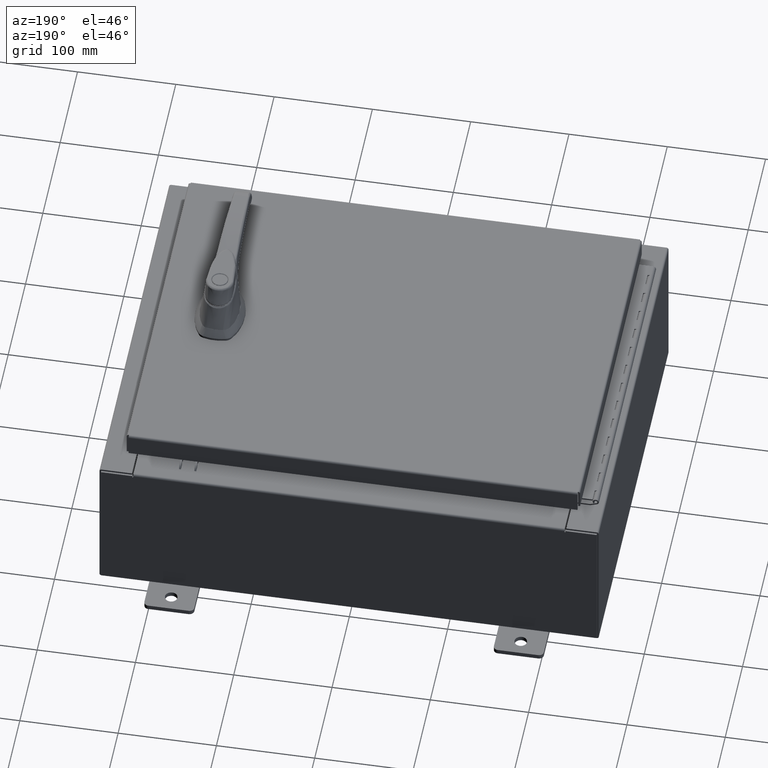
[diagram: clean part render]
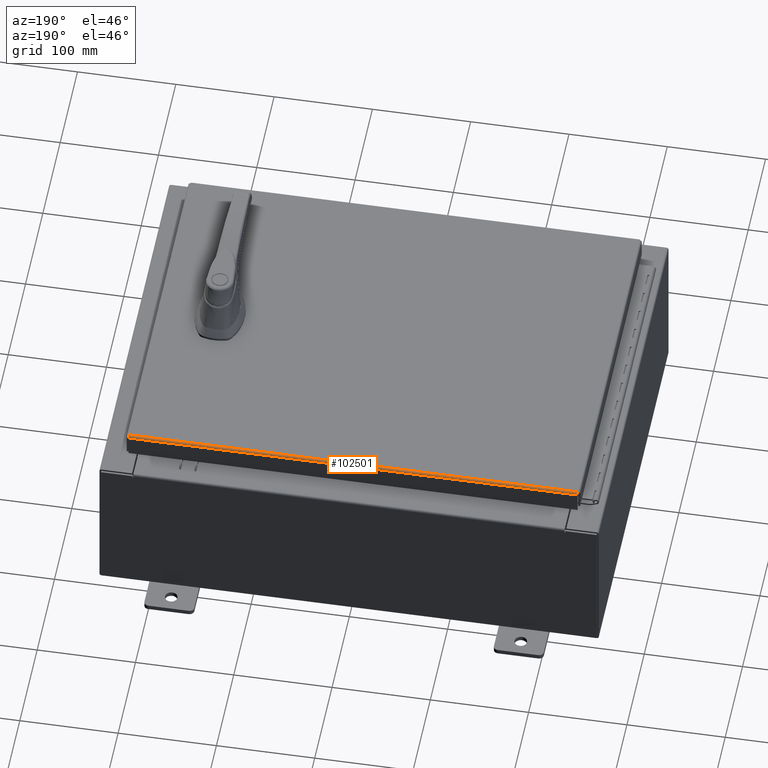
[diagram: same view with one face highlighted and labeled with its STEP entity id]
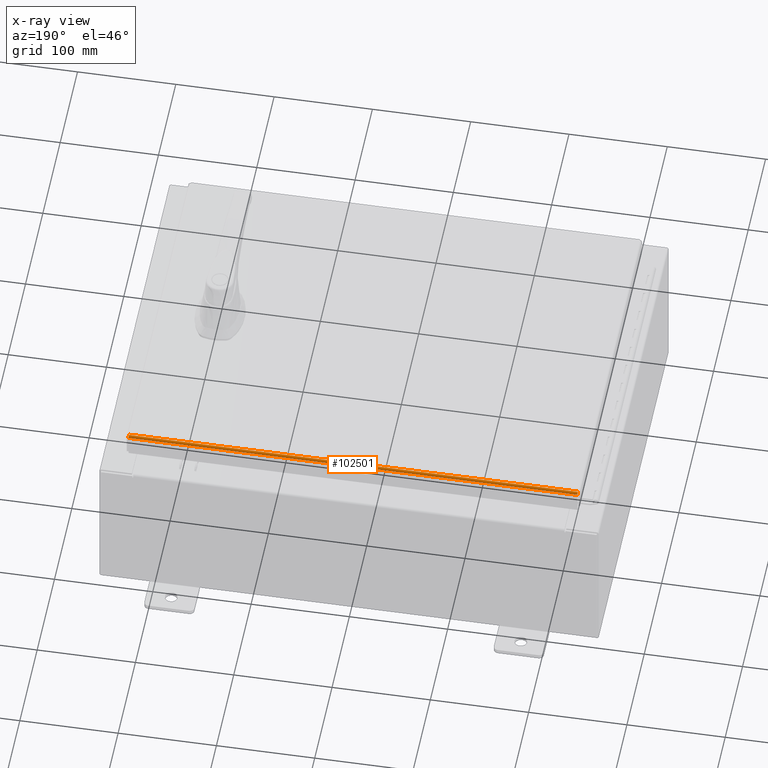
[diagram: x-ray of the same camera — body ghosted, the highlighted face saturated]
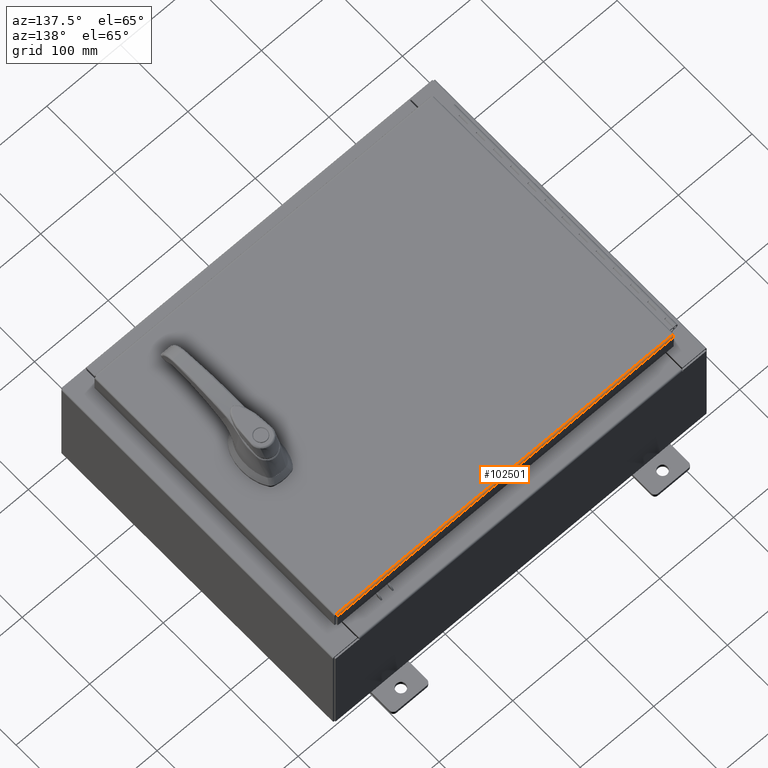
[diagram: same view with one face highlighted and labeled with its STEP entity id]
A machine part, auxiliary view. The second image highlights one B-rep face of the part: STEP entity #102501.
The next image is the same camera in x-ray: the body ghosted, the highlighted face saturated — about 0% of this face is hidden behind the body in this view.
A second angle (auxiliary view) of the same face is appended — the face is thin or edge-on in the first view.
In plain terms, the highlighted cylindrical surface (edge-blend (fillet) strip) has radius 2.2276 mm, axis along (1, 0, 0).
Its self-contained STEP definition (entity closure, byte-faithful):
#2525 = DIRECTION ( 'NONE',  ( -1.000000000000000000, -4.858276889142553200E-031, -1.863630459400616000E-045 ) ) ;
#6194 = CARTESIAN_POINT ( 'NONE',  ( -8.989538576250844000, 7.082931066258669100, -0.04353261542147220100 ) ) ;
#7625 = CARTESIAN_POINT ( 'NONE',  ( 8.990109644062711100, 7.029255289458310700, -0.002282596256188945500 ) ) ;
#14394 = CARTESIAN_POINT ( 'NONE',  ( -8.989253042344911300, 7.094000000000001200, -0.07622009684500730100 ) ) ;
#15836 = CARTESIAN_POINT ( 'NONE',  ( 8.990300000000001300, 7.006300000000001300, -2.219626494852214000E-016 ) ) ;
#16617 = EDGE_CURVE ( 'NONE', #75136, #80374, #71949, .T. ) ;
#24225 = VECTOR ( 'NONE', #42133, 39.37007874015748100 ) ;
#25635 = CARTESIAN_POINT ( 'NONE',  ( 8.990300000000001300, 7.006300000000001300, -2.219626494852214000E-016 ) ) ;
#28014 = ORIENTED_EDGE ( 'NONE', *, *, #92989, .F. ) ;
#28376 = DIRECTION ( 'NONE',  ( 1.000000000000000000, 0.0000000000000000000, 0.0000000000000000000 ) ) ;
#33545 = CARTESIAN_POINT ( 'NONE',  ( 8.990300000000001300, 7.006300000000001300, -2.219626494852214000E-016 ) ) ;
#33821 = CARTESIAN_POINT ( 'NONE',  ( -8.989157864376267100, 7.094000000000001200, -0.08769999999999997200 ) ) ;
#38440 = CARTESIAN_POINT ( 'NONE',  ( -8.990204822031353500, 7.017779903154994300, -2.229964298539175300E-016 ) ) ;
#41621 = EDGE_LOOP ( 'NONE', ( #28014, #97303, #54825, #60552 ) ) ;
#42133 = DIRECTION ( 'NONE',  ( -1.000000000000000000, -0.0000000000000000000, -0.0000000000000000000 ) ) ;
#46053 = LINE ( 'NONE', #25635, #24225 ) ;
#46997 = CARTESIAN_POINT ( 'NONE',  ( -8.989919288125420800, 7.050467384578526600, -0.01106893374133177300 ) ) ;
#48465 = CARTESIAN_POINT ( 'NONE',  ( 8.989633754219488200, 7.076430782078321400, -0.03380425265820006400 ) ) ;
#54825 = ORIENTED_EDGE ( 'NONE', *, *, #94343, .T. ) ;
#55234 = CARTESIAN_POINT ( 'NONE',  ( -8.989633754219490000, 7.076430782078319700, -0.03380425265820006400 ) ) ;
#56326 = CARTESIAN_POINT ( 'NONE',  ( 8.989253042344911300, 7.093999999999999400, -0.07622009684500727400 ) ) ;
#56661 = CARTESIAN_POINT ( 'NONE',  ( 8.989919288125422600, 7.050467384578529300, -0.01106893374133177300 ) ) ;
#56908 = EDGE_CURVE ( 'NONE', #87576, #73768, #74941, .T. ) ;
#60552 = ORIENTED_EDGE ( 'NONE', *, *, #56908, .F. ) ;
#63427 = CARTESIAN_POINT ( 'NONE',  ( -8.989348220313555500, 7.091717403743813500, -0.06474471054169114700 ) ) ;
#64876 = CARTESIAN_POINT ( 'NONE',  ( 8.990204822031357100, 7.017779903154994300, -2.224295180388261000E-016 ) ) ;
#68879 = LINE ( 'NONE', #84713, #88082 ) ;
#69319 = CYLINDRICAL_SURFACE ( 'NONE', #103268, 0.08770000000000026400 ) ;
#69625 = CARTESIAN_POINT ( 'NONE',  ( 8.989157864376267100, 7.094000000000001200, -0.08769999999999997200 ) ) ;
#71660 = CARTESIAN_POINT ( 'NONE',  ( -8.989157864376267100, 7.094000000000001200, -0.08769999999999997200 ) ) ;
#71903 = FACE_OUTER_BOUND ( 'NONE', #41621, .T. ) ;
#71949 = B_SPLINE_CURVE_WITH_KNOTS ( 'NONE', 3,
 ( #72756, #56326, #89190, #97421, #48465, #105616, #56661, #7625, #64876, #15836 ),
 .UNSPECIFIED., .F., .F.,
 ( 4, 2, 2, 2, 4 ),
 ( 0.0000000000000000000, 0.2500000000000000000, 0.5000000000000000000, 0.7500000000000000000, 1.000000000000000000 ),
 .UNSPECIFIED. ) ;
#72756 = CARTESIAN_POINT ( 'NONE',  ( 8.989157864376267100, 7.094000000000001200, -0.08769999999999997200 ) ) ;
#73768 = VERTEX_POINT ( 'NONE', #33821 ) ;
#74941 = B_SPLINE_CURVE_WITH_KNOTS ( 'NONE', 3,
 ( #103492, #38440, #95962, #46997, #104174, #55234, #6194, #63427, #14394, #71660 ),
 .UNSPECIFIED., .F., .F.,
 ( 4, 2, 2, 2, 4 ),
 ( 0.0000000000000000000, 0.2500000000000000000, 0.5000000000000000000, 0.7500000000000000000, 1.000000000000000000 ),
 .UNSPECIFIED. ) ;
#75136 = VERTEX_POINT ( 'NONE', #69625 ) ;
#80374 = VERTEX_POINT ( 'NONE', #33545 ) ;
#84713 = CARTESIAN_POINT ( 'NONE',  ( -9.077999999999999400, 7.094000000000001200, -0.08769999999999997200 ) ) ;
#85603 = CARTESIAN_POINT ( 'NONE',  ( 8.990300000000001300, 7.006300000000001300, -0.08770000000000031900 ) ) ;
#87576 = VERTEX_POINT ( 'NONE', #101959 ) ;
#88082 = VECTOR ( 'NONE', #2525, 39.37007874015748100 ) ;
#89190 = CARTESIAN_POINT ( 'NONE',  ( 8.989348220313557300, 7.091717403743812700, -0.06474471054169114700 ) ) ;
#92989 = EDGE_CURVE ( 'NONE', #80374, #87576, #46053, .T. ) ;
#94343 = EDGE_CURVE ( 'NONE', #75136, #73768, #68879, .T. ) ;
#95962 = CARTESIAN_POINT ( 'NONE',  ( -8.990109644062711100, 7.029255289458311600, -0.002282596256188945100 ) ) ;
#97303 = ORIENTED_EDGE ( 'NONE', *, *, #16617, .F. ) ;
#97421 = CARTESIAN_POINT ( 'NONE',  ( 8.989538576250840400, 7.082931066258669100, -0.04353261542147220100 ) ) ;
#101959 = CARTESIAN_POINT ( 'NONE',  ( -8.990299999999999500, 7.006300000000001300, -1.843997395723377600E-015 ) ) ;
#102064 = DIRECTION ( 'NONE',  ( 0.0000000000000000000, 1.000000000000000000, 3.893740013774593800E-015 ) ) ;
#102501 = ADVANCED_FACE ( 'NONE', ( #71903 ), #69319, .T. ) ;
#103268 = AXIS2_PLACEMENT_3D ( 'NONE', #85603, #28376, #102064 ) ;
#103492 = CARTESIAN_POINT ( 'NONE',  ( -8.990299999999999500, 7.006300000000001300, -1.843997395723377600E-015 ) ) ;
#104174 = CARTESIAN_POINT ( 'NONE',  ( -8.989824110156776600, 7.060195747341802900, -0.01756921792167975800 ) ) ;
#105616 = CARTESIAN_POINT ( 'NONE',  ( 8.989824110156776600, 7.060195747341802000, -0.01756921792167976200 ) ) ;